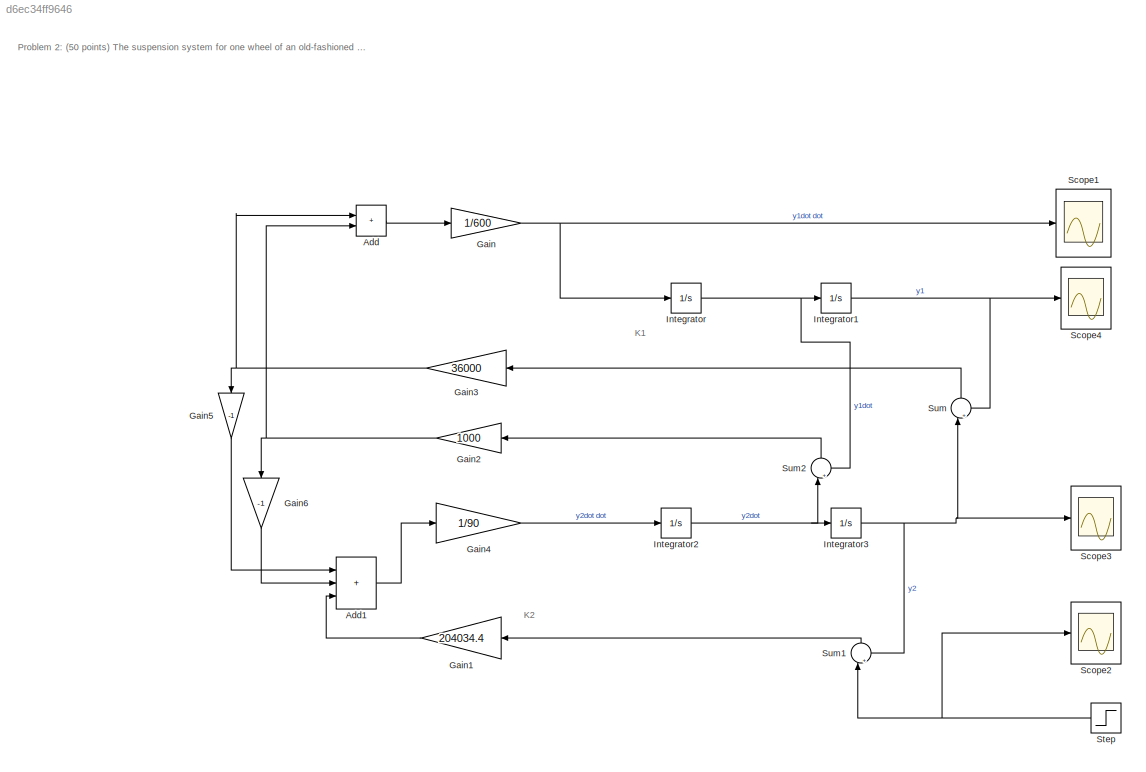
MODEL slx_d6ec34ff9646
KIND model
CONFIG AbsTol = auto
CONFIG EnableMultiTasking = off
CONFIG FixedStep = auto
CONFIG MaxStep = auto
CONFIG MinStep = auto
CONFIG RelTol = 1e-3
CONFIG SampleTimeConstraint = Unconstrained
CONFIG SolverName = VariableStepAuto
CONFIG StartTime = 0.0
CONFIG StopTime = 100.0
BLOCK [Sum] Add
  IconShape = rectangular
  Ports = [2, 1]
BLOCK [Sum] Add1
  IconShape = rectangular
  Inputs = +++
  Ports = [3, 1]
BLOCK [Gain] Gain
  Gain = 1/600
BLOCK [Gain] Gain1
  Gain = 204034.4
BLOCK [Gain] Gain2
  Gain = 1000
BLOCK [Gain] Gain3
  Gain = 36000
  NameLocation = top
BLOCK [Gain] Gain4
  Gain = 1/90
BLOCK [Gain] Gain5
  Gain = -1
  NameLocation = left
BLOCK [Gain] Gain6
  Gain = -1
  NameLocation = left
BLOCK [Integrator] Integrator
  Ports = [1, 1]
BLOCK [Integrator] Integrator1
  Ports = [1, 1]
BLOCK [Integrator] Integrator2
  Ports = [1, 1]
BLOCK [Integrator] Integrator3
  Ports = [1, 1]
BLOCK [Scope] Scope1
  Floating = off
  NumInputPorts = 1
  Ports = [1]
  ScopeSpecificationString = Simulink.scopes.TimeScopeBlockCfg('CurrentConfiguration', extmgr.ConfigurationSet(extmgr.Configuration('Core','General UI',true),extmgr.Configuration('Core','Source UI',true),extmgr.Configuration('Sources','WiredSimulink',true,'DataLoggingVariableName','ScopeData1'),extmgr.Configuration('Visuals','Time Domain',true,'SerializedDisplays',{struct('MinYLimReal','-69.29115','MaxYLimReal','132.16765','Y...<+1373ch>
BLOCK [Scope] Scope2
  Floating = off
  NumInputPorts = 1
  Ports = [1]
  ScopeSpecificationString = Simulink.scopes.TimeScopeBlockCfg('CurrentConfiguration', extmgr.ConfigurationSet(extmgr.Configuration('Core','General UI',true),extmgr.Configuration('Core','Source UI',true),extmgr.Configuration('Sources','WiredSimulink',true,'DataLoggingVariableName','ScopeData2'),extmgr.Configuration('Visuals','Time Domain',true,'SerializedDisplays',{struct('MinYLimReal','-0.125','MaxYLimReal','1.125','YLabelRe...<+1395ch>
BLOCK [Scope] Scope3
  Floating = off
  NumInputPorts = 1
  Ports = [1]
  ScopeSpecificationString = Simulink.scopes.TimeScopeBlockCfg('CurrentConfiguration', extmgr.ConfigurationSet(extmgr.Configuration('Core','General UI',true),extmgr.Configuration('Core','Source UI',true),extmgr.Configuration('Sources','WiredSimulink',true,'DataLoggingVariableName','ScopeData3'),extmgr.Configuration('Visuals','Time Domain',true,'SerializedDisplays',{struct('MinYLimReal','-0.18027','MaxYLimReal','1.62247','YLab...<+1405ch>
BLOCK [Scope] Scope4
  Floating = off
  NumInputPorts = 1
  Ports = [1]
  ScopeSpecificationString = Simulink.scopes.TimeScopeBlockCfg('CurrentConfiguration', extmgr.ConfigurationSet(extmgr.Configuration('Core','General UI',true),extmgr.Configuration('Core','Source UI',true),extmgr.Configuration('Sources','WiredSimulink',true),extmgr.Configuration('Visuals','Time Domain',true,'SerializedDisplays',{struct('MinYLimReal','0.46738','MaxYLimReal','1.46424','YLabelReal','','MinYLimMag','0.46738','MaxYL...<+1364ch>
BLOCK [Step] Step
  SampleTime = 0
BLOCK [Sum] Sum
  Inputs = |+-
  NameLocation = left
  Ports = [2, 1]
BLOCK [Sum] Sum1
  Inputs = |+-
  NameLocation = left
  Ports = [2, 1]
BLOCK [Sum] Sum2
  Inputs = |+-
  NameLocation = left
  Ports = [2, 1]
ANNOTATION (root): Problem 2: (50 points) The suspension system for one wheel of an old-fashioned pickup truck is illustrated in figure 2. The mass of the vehicle is m1 and the mass of the wheel is m2. The suspension spring has a spring constant k1 and the tire had the spring constant k2. The damping constant of the shock absorber is b. Obtain the mathematical model which represent the vehicle response to bump in th...<+113ch>
ANNOTATION (root): K1
ANNOTATION (root): K2
LINE Add1:1 -> Gain4:1
LINE Add:1 -> Gain:1
LINE Gain1:1 -> Add1:3
NET Gain2:1 -> Add:2, Gain6:1
NET Gain3:1 -> Add:1, Gain5:1
LINE Gain4:1 -> Integrator2:1
LINE Gain5:1 -> Add1:1
LINE Gain6:1 -> Add1:2
NET Gain:1 -> Integrator:1, Scope1:1
NET Integrator1:1 -> Scope4:1, Sum:2
NET Integrator2:1 -> Integrator3:1, Sum2:1
NET Integrator3:1 -> Scope3:1, Sum1:2, Sum:1
NET Integrator:1 -> Integrator1:1, Sum2:2
NET Step:1 -> Scope2:1, Sum1:1
LINE Sum1:1 -> Gain1:1
LINE Sum2:1 -> Gain2:1
LINE Sum:1 -> Gain3:1
note: NET lines group one-source signal fan-out (src -> all destinations, sorted); 1:1 wires keep LINE
